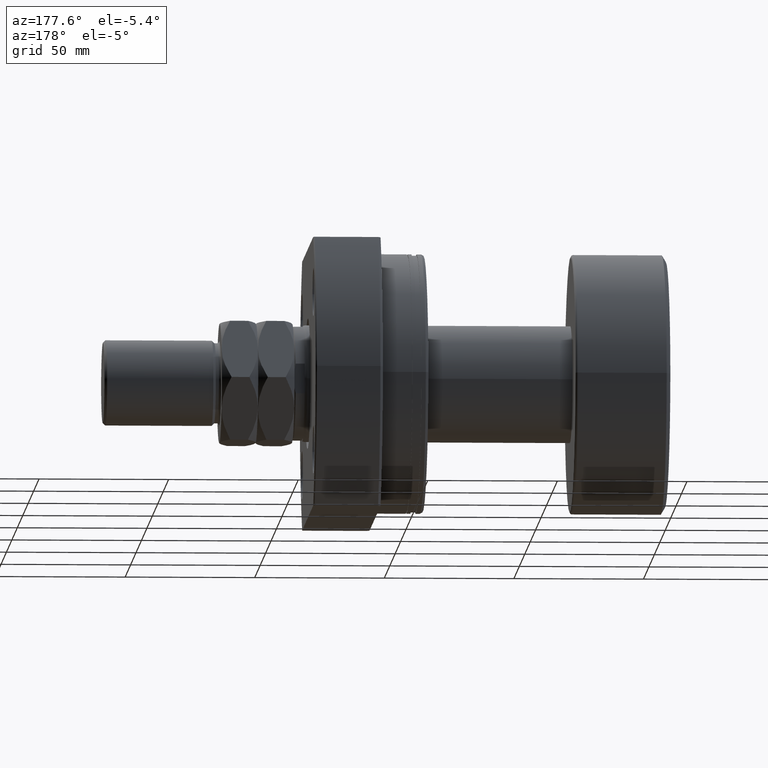
[diagram: clean part render]
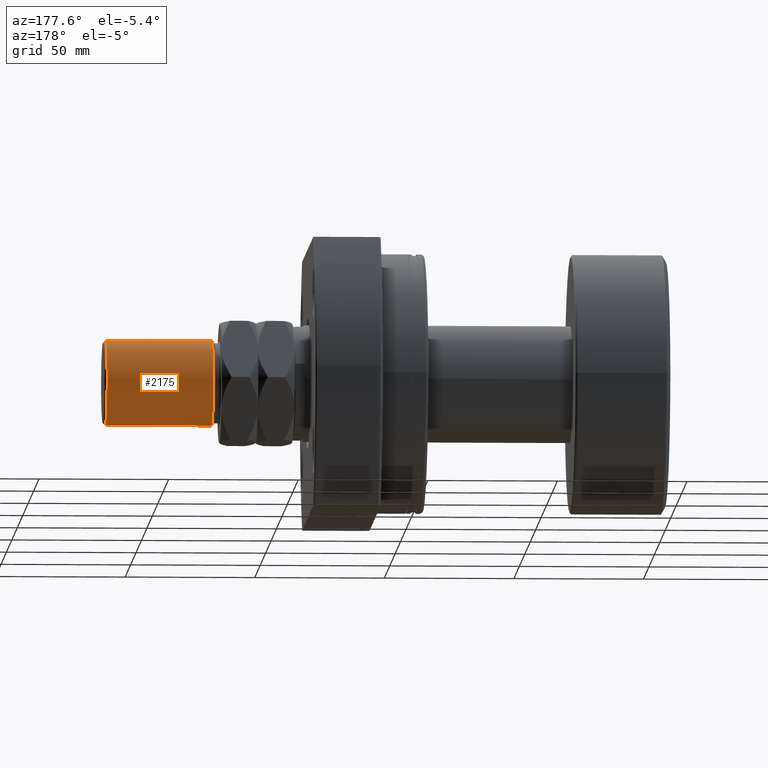
[diagram: same view with one face highlighted and labeled with its STEP entity id]
A machine part, auxiliary view. The second image highlights one B-rep face of the part: STEP entity #2175.
In plain terms, the highlighted cylindrical surface (partial cylindrical patch) has radius 16.5 mm, axis along (-1, -0, 0).
Its self-contained STEP definition (entity closure, byte-faithful):
#39 = CARTESIAN_POINT ( 'NONE',  ( 0.000000000000000000, 0.000000000000000000, 72.00000000000000000 ) ) ;
#111 = LINE ( 'NONE', #1620, #4890 ) ;
#118 = CIRCLE ( 'NONE', #3593, 16.50000000000000000 ) ;
#126 = VECTOR ( 'NONE', #205, 1000.000000000000000 ) ;
#161 = LINE ( 'NONE', #4023, #126 ) ;
#205 = DIRECTION ( 'NONE',  ( -0.000000000000000000, -0.000000000000000000, -1.000000000000000000 ) ) ;
#289 = CARTESIAN_POINT ( 'NONE',  ( 0.000000000000000000, 0.000000000000000000, 73.00000000000000000 ) ) ;
#335 = EDGE_CURVE ( 'NONE', #1249, #2631, #1399, .T. ) ;
#375 = ORIENTED_EDGE ( 'NONE', *, *, #335, .T. ) ;
#480 = AXIS2_PLACEMENT_3D ( 'NONE', #289, #3571, #4042 ) ;
#707 = CARTESIAN_POINT ( 'NONE',  ( 16.50000000000000000, 2.020667218593133100E-15, 30.99999999999998579 ) ) ;
#866 = CARTESIAN_POINT ( 'NONE',  ( -16.50000000000000000, 0.000000000000000000, 72.00000000000000000 ) ) ;
#899 = DIRECTION ( 'NONE',  ( -0.000000000000000000, -0.000000000000000000, -1.000000000000000000 ) ) ;
#1111 = DIRECTION ( 'NONE',  ( 1.000000000000000000, 0.000000000000000000, 0.000000000000000000 ) ) ;
#1226 = DIRECTION ( 'NONE',  ( 1.000000000000000000, 0.000000000000000000, 0.000000000000000000 ) ) ;
#1249 = VERTEX_POINT ( 'NONE', #866 ) ;
#1358 = EDGE_LOOP ( 'NONE', ( #375, #2101, #4648, #1555 ) ) ;
#1399 = CIRCLE ( 'NONE', #3861, 16.50000000000000000 ) ;
#1555 = ORIENTED_EDGE ( 'NONE', *, *, #3222, .F. ) ;
#1558 = VERTEX_POINT ( 'NONE', #707 ) ;
#1576 = DIRECTION ( 'NONE',  ( 0.000000000000000000, 0.000000000000000000, -1.000000000000000000 ) ) ;
#1620 = CARTESIAN_POINT ( 'NONE',  ( -16.50000000000000000, 0.000000000000000000, 73.00000000000000000 ) ) ;
#2101 = ORIENTED_EDGE ( 'NONE', *, *, #4740, .T. ) ;
#2175 = ADVANCED_FACE ( 'NONE', ( #4078 ), #2965, .T. ) ;
#2631 = VERTEX_POINT ( 'NONE', #3015 ) ;
#2644 = DIRECTION ( 'NONE',  ( -0.000000000000000000, -0.000000000000000000, 1.000000000000000000 ) ) ;
#2965 = CYLINDRICAL_SURFACE ( 'NONE', #480, 16.50000000000000000 ) ;
#3015 = CARTESIAN_POINT ( 'NONE',  ( 16.50000000000000000, 2.020667218593133100E-15, 72.00000000000000000 ) ) ;
#3222 = EDGE_CURVE ( 'NONE', #1249, #3787, #111, .T. ) ;
#3571 = DIRECTION ( 'NONE',  ( -0.000000000000000000, -0.000000000000000000, -1.000000000000000000 ) ) ;
#3593 = AXIS2_PLACEMENT_3D ( 'NONE', #4511, #2644, #1111 ) ;
#3758 = EDGE_CURVE ( 'NONE', #1558, #3787, #118, .T. ) ;
#3787 = VERTEX_POINT ( 'NONE', #3800 ) ;
#3800 = CARTESIAN_POINT ( 'NONE',  ( -16.50000000000000000, 0.000000000000000000, 30.99999999999998579 ) ) ;
#3861 = AXIS2_PLACEMENT_3D ( 'NONE', #39, #1576, #1226 ) ;
#4023 = CARTESIAN_POINT ( 'NONE',  ( 16.50000000000000000, 2.020667218593133100E-15, 73.00000000000000000 ) ) ;
#4042 = DIRECTION ( 'NONE',  ( -1.000000000000000000, 0.000000000000000000, 0.000000000000000000 ) ) ;
#4078 = FACE_OUTER_BOUND ( 'NONE', #1358, .T. ) ;
#4511 = CARTESIAN_POINT ( 'NONE',  ( 0.000000000000000000, 0.000000000000000000, 30.99999999999998579 ) ) ;
#4648 = ORIENTED_EDGE ( 'NONE', *, *, #3758, .T. ) ;
#4740 = EDGE_CURVE ( 'NONE', #2631, #1558, #161, .T. ) ;
#4890 = VECTOR ( 'NONE', #899, 1000.000000000000000 ) ;